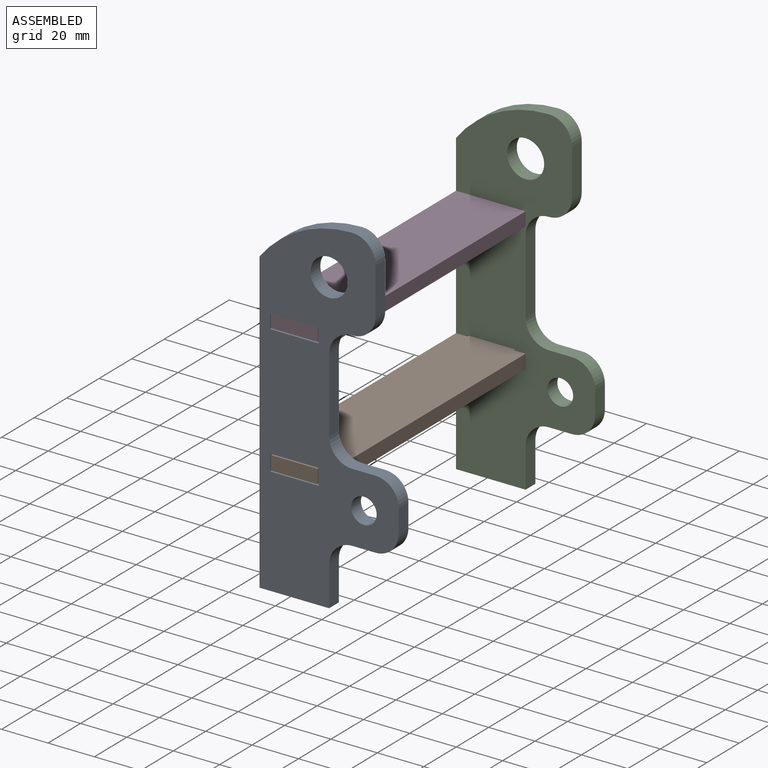
[diagram: assembled view]
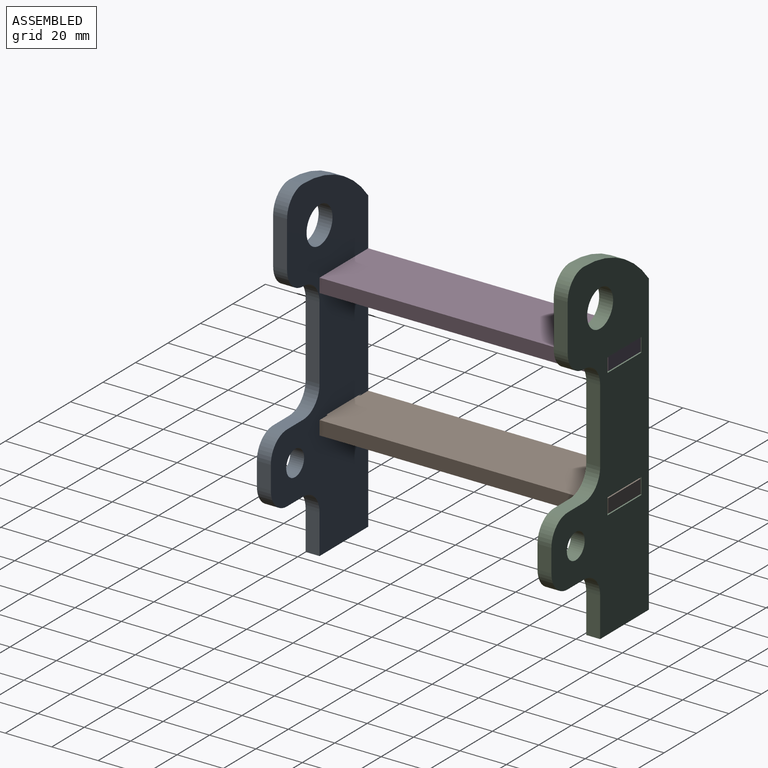
[diagram: assembled view, second angle]
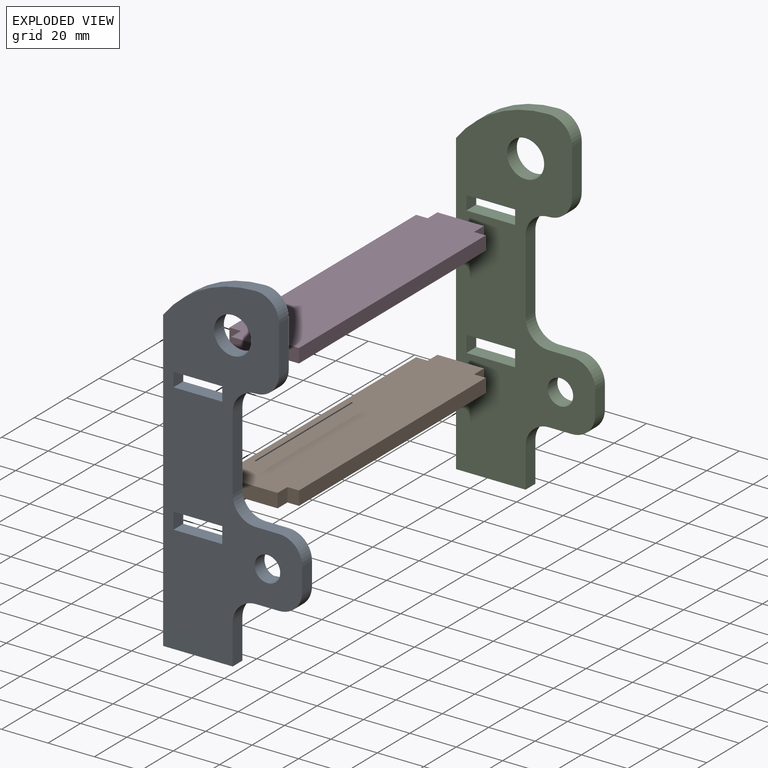
[diagram: exploded view]
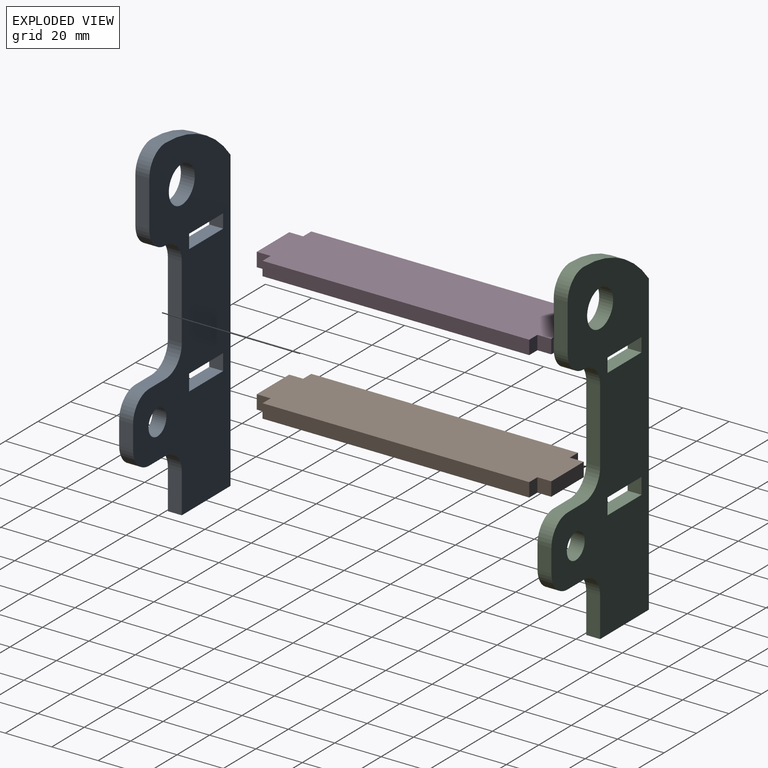
[diagram: exploded view, second angle]
ASSEMBLY  parts=4 mates=3
PART A: 28 faces, bbox 60x6x149 mm
  f0: plane 149x60mm, normal (0,-1,0), area 5339.3mm2, adj f2,f3,f4,f5,f6,f7,f8,f9
  f1: plane 149x60mm, normal (0,1,0), area 5339.3mm2, adj f2,f3,f4,f5,f6,f7,f8,f9
  f2: plane 17x6mm, normal (1,0,0), area 102mm2, adj f0,f1,f3,f19
  f3: cylinder r=10mm len=10mm, axis (0,1,0), area 94.2mm2, adj f0,f1,f2,f4
  f4: plane 10x6mm, normal (0,0,-1), area 60mm2, adj f0,f1,f3,f5
  f5: cylinder r=10mm len=10mm, axis (0,1,0), area 94.2mm2, adj f0,f1,f4,f6
  f6: plane 10x6mm, normal (1,0,0), area 60mm2, adj f0,f1,f5,f7
  f7: cylinder r=10mm len=10mm, axis (0,1,0), area 94.2mm2, adj f0,f1,f6,f8
  f8: plane 10x6mm, normal (0,0,1), area 60mm2, adj f0,f1,f7,f9
  f9: cylinder r=10mm len=10mm, axis (0,1,0), area 94.2mm2, adj f0,f1,f8,f10
  f10: plane 32x6mm, normal (1,0,0), area 192mm2, adj f0,f1,f9,f11
  f11: cylinder r=10mm len=10mm, axis (0,1,0), area 94.2mm2, adj f0,f1,f10,f12
  f12: cylinder r=10mm len=10mm, axis (0,1,0), area 94.2mm2, adj f0,f1,f11,f13
  f13: plane 20x6mm, normal (1,0,0), area 120mm2, adj f0,f1,f12,f14
  f14: cylinder r=10mm len=10mm, axis (0,1,0), area 94.2mm2, adj f0,f1,f13,f17
  f15: cylinder r=5.5mm len=11mm, axis (0,1,0), area 207.3mm2, adj f0,f1
  f16: cylinder r=8mm len=16mm, axis (0,1,0), area 301.6mm2, adj f0,f1
  f17: cylinder r=50.12mm len=40mm, axis (0,1,0), area 277.9mm2, adj f0,f1,f14,f18
  f18: plane 129.08x6mm, normal (-1,0,0), area 774.5mm2, adj f0,f1,f17,f19
  f19: plane 30x6mm, normal (0,0,-1), area 180mm2, adj f0,f1,f2,f18
  f20: plane 21x6mm, normal (0,0,1), area 126mm2, adj f0,f1,f21,f23
  f21: plane 6x6mm, normal (-1,0,0), area 36mm2, adj f0,f1,f20,f22
  f22: plane 21x6mm, normal (0,0,-1), area 126mm2, adj f0,f1,f21,f23
  f23: plane 6x6mm, normal (1,0,0), area 36mm2, adj f0,f1,f20,f22
  f24: plane 21x6mm, normal (0,0,1), area 126mm2, adj f0,f1,f25,f27
  f25: plane 7x6mm, normal (-1,0,0), area 42mm2, adj f0,f1,f24,f26
  f26: plane 21x6mm, normal (0,0,-1), area 126mm2, adj f0,f1,f25,f27
  f27: plane 7x6mm, normal (1,0,0), area 42mm2, adj f0,f1,f24,f26
PART B: 14 faces, bbox 30x127x6 mm
  f0: plane 6x5mm, normal (0,1,0), area 30mm2, adj f1,f11,f12,f13
  f1: plane 115x6mm, normal (-1,0,0), area 690mm2, adj f0,f2,f12,f13
  f2: plane 6x5mm, normal (0,-1,0), area 30mm2, adj f1,f3,f12,f13
  f3: plane 6x6mm, normal (-1,0,0), area 36mm2, adj f2,f4,f12,f13
  f4: plane 20x6mm, normal (0,-1,0), area 120mm2, adj f3,f5,f12,f13
  f5: plane 6x6mm, normal (1,0,0), area 36mm2, adj f4,f6,f12,f13
  f6: plane 6x5mm, normal (0,-1,0), area 30mm2, adj f5,f7,f12,f13
  f7: plane 115x6mm, normal (1,0,0), area 690mm2, adj f6,f8,f12,f13
  f8: plane 6x5mm, normal (0,1,0), area 30mm2, adj f7,f9,f12,f13
  f9: plane 6x6mm, normal (1,0,0), area 36mm2, adj f8,f10,f12,f13
  f10: plane 20x6mm, normal (0,1,0), area 120mm2, adj f9,f11,f12,f13
  f11: plane 6x6mm, normal (-1,0,0), area 36mm2, adj f0,f10,f12,f13
  f12: plane 127x30mm, normal (0,0,1), area 3690mm2, adj f0,f1,f2,f3,f4,f5,f6,f7
  f13: plane 127x30mm, normal (0,0,-1), area 3690mm2, adj f0,f1,f2,f3,f4,f5,f6,f7
PART C: same geometry as A
PART D: same geometry as B
PLACE A t=(-120.04,-250.19,36.58)mm
PLACE B t=(-130.28,-205.93,-11.91)mm
PLACE C t=(-120.04,-129.19,36.58)mm
PLACE D t=(-130.28,-205.93,43.59)mm
MATE fastened C.f1 <-> B.f10  axis (0,1,0) through (-154.47,-129.19,-5.41)mm
MATE fastened A.f1 <-> D.f6  axis (0,1,0) through (-154.47,-250.19,49.09)mm
MATE fastened D.f10 <-> C.f1  axis (0,1,0) through (-154.47,-129.19,49.59)mm
